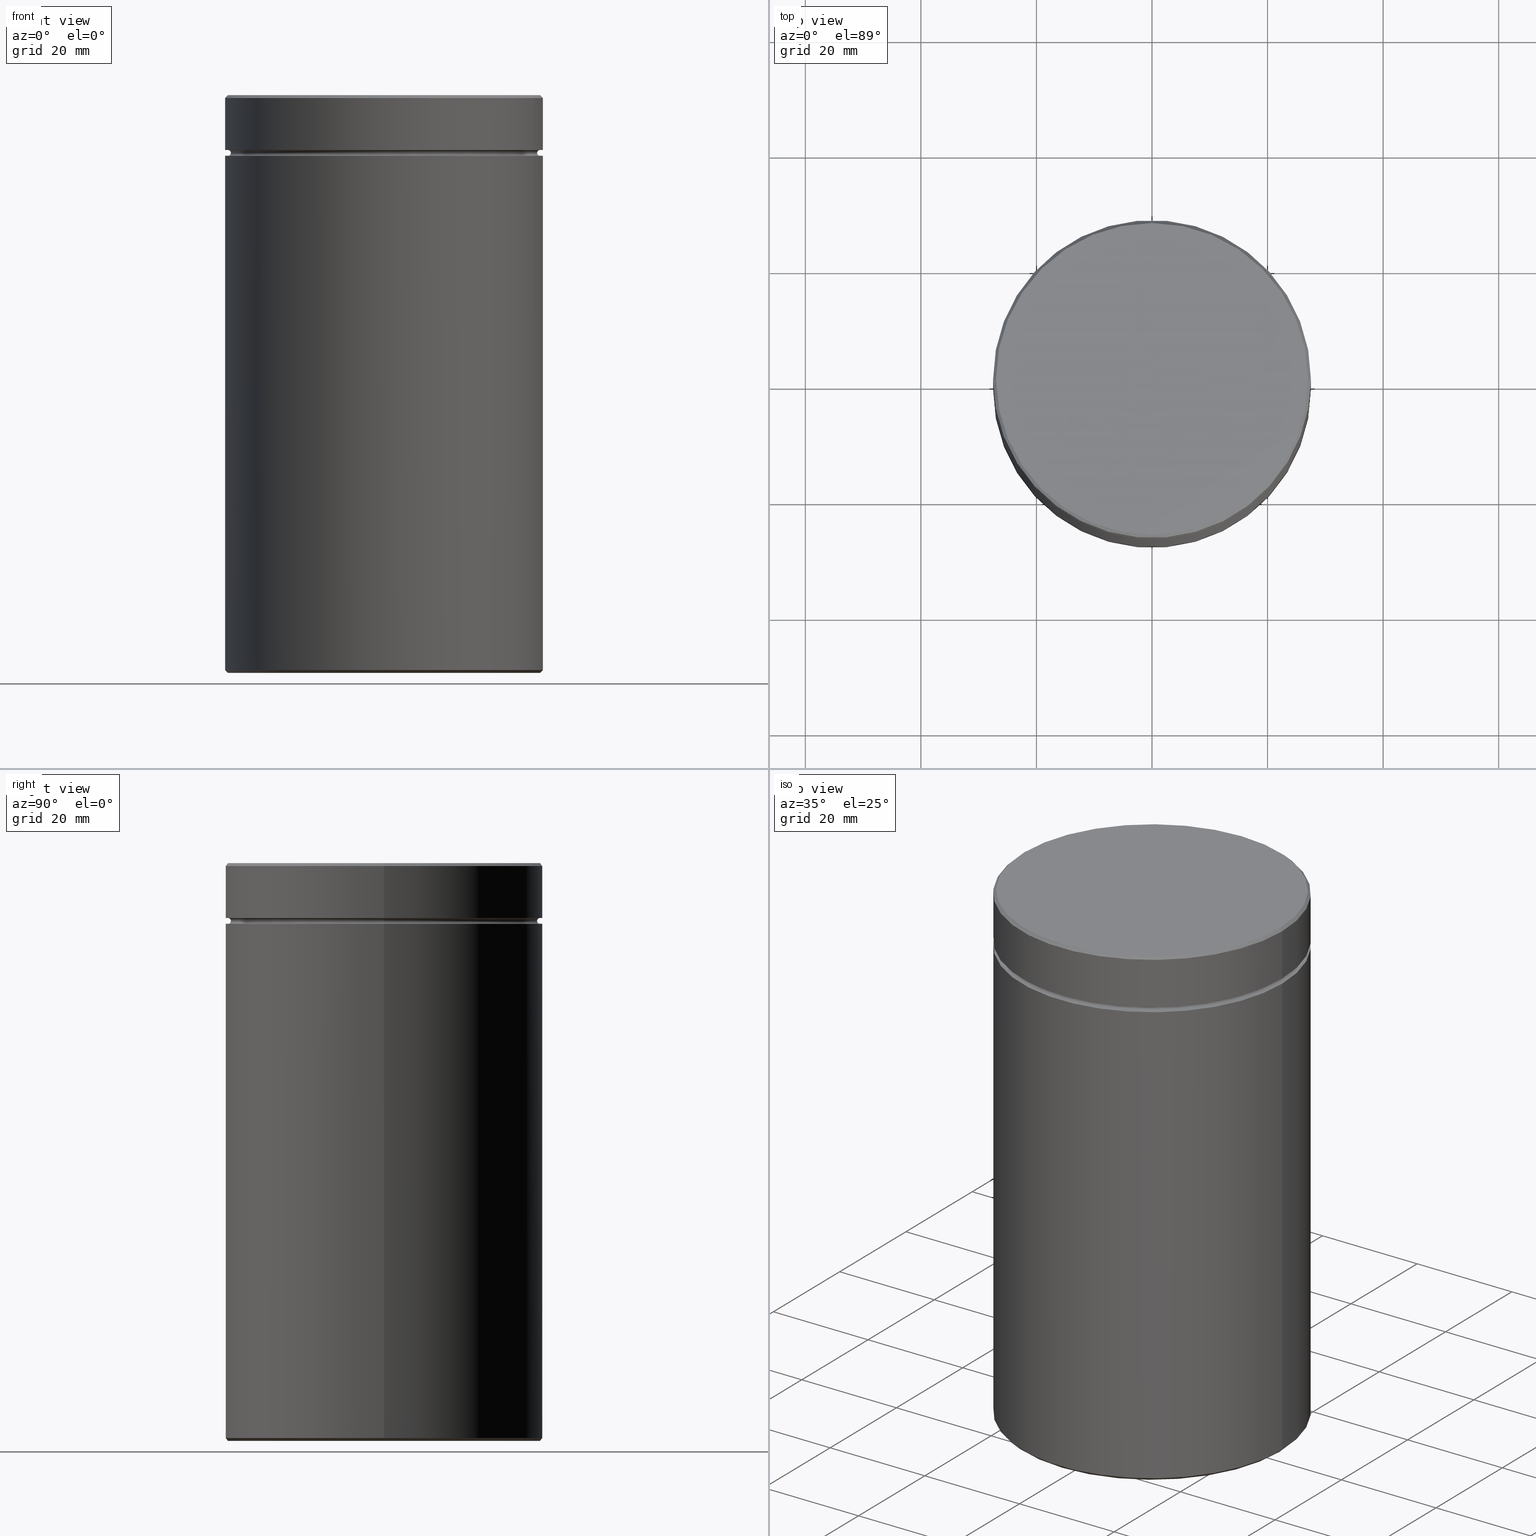
[diagram: canonical four-view strip — front | top / right | iso, engineering-drawing reading convention]
A machine part, canonical four-view strip (front | top / right | iso — engineering-drawing reading convention). The complete STEP part file that produces these views, byte-faithful:
ISO-10303-21;
HEADER;
FILE_DESCRIPTION (( 'STEP AP203' ),
    '1' );
FILE_NAME ('6534.STEP',
    '2024-01-08T12:14:00',
    ( '' ),
    ( '' ),
    'SwSTEP 2.0',
    'SolidWorks 2019',
    '' );
FILE_SCHEMA (( 'CONFIG_CONTROL_DESIGN' ));
ENDSEC;

DATA;
#1 = AXIS2_PLACEMENT_3D ( 'NONE', #430, #31, #298 ) ;
#2 = ORIENTED_EDGE ( 'NONE', *, *, #403, .T. ) ;
#3 = CARTESIAN_POINT ( 'NONE',  ( 0.000000000000000000, 27.50000000000000000, -100.0000000000000000 ) ) ;
#4 = ORIENTED_EDGE ( 'NONE', *, *, #102, .T. ) ;
#5 = FACE_OUTER_BOUND ( 'NONE', #489, .T. ) ;
#6 = EDGE_LOOP ( 'NONE', ( #527, #376 ) ) ;
#7 = ADVANCED_FACE ( 'NONE', ( #13 ), #60, .T. ) ;
#8 = AXIS2_PLACEMENT_3D ( 'NONE', #474, #68, #114 ) ;
#9 = PERSON_AND_ORGANIZATION ( #221, #469 ) ;
#10 = DIRECTION ( 'NONE',  ( -1.000000000000000000, 0.000000000000000000, 0.000000000000000000 ) ) ;
#11 = CYLINDRICAL_SURFACE ( 'NONE', #254, 27.50000000000000000 ) ;
#12 = ADVANCED_FACE ( 'NONE', ( #288, #328 ), #503, .T. ) ;
#13 = FACE_OUTER_BOUND ( 'NONE', #534, .T. ) ;
#14 = EDGE_LOOP ( 'NONE', ( #227, #408 ) ) ;
#15 = CARTESIAN_POINT ( 'NONE',  ( 0.000000000000000000, 0.000000000000000000, 0.000000000000000000 ) ) ;
#16 = CARTESIAN_POINT ( 'NONE',  ( 0.000000000000000000, 0.000000000000000000, -10.00000000000000178 ) ) ;
#17 = CIRCLE ( 'NONE', #260, 26.99999999999996803 ) ;
#18 = ORIENTED_EDGE ( 'NONE', *, *, #492, .T. ) ;
#19 = ORIENTED_EDGE ( 'NONE', *, *, #475, .F. ) ;
#20 = EDGE_CURVE ( 'NONE', #549, #146, #377, .T. ) ;
#21 = DATE_AND_TIME ( #471, #432 ) ;
#22 = DIRECTION ( 'NONE',  ( 0.7071067811865401342, 0.000000000000000000, 0.7071067811865549002 ) ) ;
#23 = CIRCLE ( 'NONE', #539, 0.5000000000000004441 ) ;
#24 = AXIS2_PLACEMENT_3D ( 'NONE', #476, #394, #361 ) ;
#25 = CARTESIAN_POINT ( 'NONE',  ( -27.00000000000000000, 0.000000000000000000, -9.499999999999998224 ) ) ;
#26 = CARTESIAN_POINT ( 'NONE',  ( 0.000000000000000000, 0.000000000000000000, -29.00000000000001066 ) ) ;
#27 = EDGE_LOOP ( 'NONE', ( #93, #189, #404, #4 ) ) ;
#28 = CARTESIAN_POINT ( 'NONE',  ( 27.00000000000000000, 3.306546357697854128E-15, -9.499999999999998224 ) ) ;
#29 = EDGE_CURVE ( 'NONE', #484, #272, #205, .T. ) ;
#30 = FACE_OUTER_BOUND ( 'NONE', #141, .T. ) ;
#31 = DIRECTION ( 'NONE',  ( -0.000000000000000000, -0.000000000000000000, 1.000000000000000000 ) ) ;
#32 = AXIS2_PLACEMENT_3D ( 'NONE', #132, #267, #434 ) ;
#33 = EDGE_CURVE ( 'NONE', #152, #488, #477, .T. ) ;
#34 = LINE ( 'NONE', #395, #245 ) ;
#35 = CARTESIAN_POINT ( 'NONE',  ( 0.000000000000000000, 0.000000000000000000, -9.499999999999998224 ) ) ;
#36 = ORIENTED_EDGE ( 'NONE', *, *, #135, .T. ) ;
#37 = ORIENTED_EDGE ( 'NONE', *, *, #386, .F. ) ;
#38 = LINE ( 'NONE', #59, #427 ) ;
#39 = AXIS2_PLACEMENT_3D ( 'NONE', #559, #120, #382 ) ;
#40 = ORIENTED_EDGE ( 'NONE', *, *, #339, .F. ) ;
#41 = EDGE_LOOP ( 'NONE', ( #49, #18, #133, #78 ) ) ;
#42 = PLANE ( 'NONE',  #213 ) ;
#43 = DIRECTION ( 'NONE',  ( 0.000000000000000000, 0.000000000000000000, -1.000000000000000000 ) ) ;
#44 = ADVANCED_FACE ( 'NONE', ( #155 ), #244, .T. ) ;
#45 = ORIENTED_EDGE ( 'NONE', *, *, #274, .T. ) ;
#46 = VERTEX_POINT ( 'NONE', #194 ) ;
#47 = PERSON_AND_ORGANIZATION_ROLE ( 'creator' ) ;
#48 = CARTESIAN_POINT ( 'NONE',  ( -27.00000000000000000, 0.000000000000000000, -9.999999999999998224 ) ) ;
#49 = ORIENTED_EDGE ( 'NONE', *, *, #33, .T. ) ;
#50 = ORIENTED_EDGE ( 'NONE', *, *, #251, .F. ) ;
#51 = AXIS2_PLACEMENT_3D ( 'NONE', #282, #277, #10 ) ;
#52 = ORIENTED_EDGE ( 'NONE', *, *, #339, .T. ) ;
#53 = APPROVAL_ROLE ( '' ) ;
#54 = DIRECTION ( 'NONE',  ( -0.000000000000000000, -0.000000000000000000, 1.000000000000000000 ) ) ;
#55 = ORIENTED_EDGE ( 'NONE', *, *, #421, .F. ) ;
#56 = UNCERTAINTY_MEASURE_WITH_UNIT (LENGTH_MEASURE( 1.000000000000000082E-05 ), #196, 'distance_accuracy_value', 'NONE');
#57 = APPLICATION_PROTOCOL_DEFINITION ( 'international standard', 'config_control_design', 1994, #545 ) ;
#58 = ADVANCED_FACE ( 'NONE', ( #371 ), #108, .F. ) ;
#59 = CARTESIAN_POINT ( 'NONE',  ( 27.50000000000000000, 0.000000000000000000, 0.000000000000000000 ) ) ;
#60 = CYLINDRICAL_SURFACE ( 'NONE', #139, 27.50000000000000000 ) ;
#61 = ORIENTED_EDGE ( 'NONE', *, *, #180, .T. ) ;
#62 = CIRCLE ( 'NONE', #460, 27.00000000000000000 ) ;
#63 = CONICAL_SURFACE ( 'NONE', #1, 27.50000000000000000, 0.7853981633974378429 ) ;
#64 = PERSON_AND_ORGANIZATION ( #221, #469 ) ;
#65 = LINE ( 'NONE', #247, #149 ) ;
#66 = EDGE_CURVE ( 'NONE', #272, #484, #220, .T. ) ;
#67 = ORIENTED_EDGE ( 'NONE', *, *, #180, .F. ) ;
#68 = DIRECTION ( 'NONE',  ( 0.000000000000000000, 0.000000000000000000, -1.000000000000000000 ) ) ;
#69 = CARTESIAN_POINT ( 'NONE',  ( 27.00000000000000000, 0.000000000000000000, -10.00000000000000178 ) ) ;
#70 = CLOSED_SHELL ( 'NONE', ( #163, #58, #124, #265, #216, #537, #312, #191, #364, #7, #12, #451, #567, #82, #44, #481, #379, #302, #370 ) ) ;
#71 = CIRCLE ( 'NONE', #506, 26.50000000000000000 ) ;
#72 = EDGE_CURVE ( 'NONE', #238, #305, #65, .T. ) ;
#73 = LOCAL_TIME ( 13, 14, 0.000000000000000000, #202 ) ;
#74 = CARTESIAN_POINT ( 'NONE',  ( 26.50000000000000000, 0.000000000000000000, -10.00000000000000178 ) ) ;
#75 = CARTESIAN_POINT ( 'NONE',  ( 0.000000000000000000, 0.000000000000000000, -29.00000000000001066 ) ) ;
#76 = DIRECTION ( 'NONE',  ( 0.000000000000000000, -0.000000000000000000, 1.000000000000000000 ) ) ;
#77 = DIRECTION ( 'NONE',  ( 0.000000000000000000, 0.000000000000000000, -1.000000000000000000 ) ) ;
#78 = ORIENTED_EDGE ( 'NONE', *, *, #533, .F. ) ;
#79 = FACE_OUTER_BOUND ( 'NONE', #95, .T. ) ;
#80 = VECTOR ( 'NONE', #436, 1000.000000000000000 ) ;
#81 = DIRECTION ( 'NONE',  ( 1.000000000000000000, 0.000000000000000000, 0.000000000000000000 ) ) ;
#82 = ADVANCED_FACE ( 'NONE', ( #548 ), #295, .F. ) ;
#83 = LINE ( 'NONE', #262, #80 ) ;
#84 = ORIENTED_EDGE ( 'NONE', *, *, #285, .T. ) ;
#85 = DIRECTION ( 'NONE',  ( -1.000000000000000000, 0.000000000000000000, 0.000000000000000000 ) ) ;
#86 = DIRECTION ( 'NONE',  ( -1.000000000000000000, 0.000000000000000000, 0.000000000000000000 ) ) ;
#87 = ORIENTED_EDGE ( 'NONE', *, *, #296, .F. ) ;
#88 = CARTESIAN_POINT ( 'NONE',  ( 0.000000000000000000, 0.000000000000000000, 0.000000000000000000 ) ) ;
#89 = EDGE_CURVE ( 'NONE', #238, #528, #419, .T. ) ;
#90 = CONICAL_SURFACE ( 'NONE', #318, 27.50000000000000000, 0.7853981633974378429 ) ;
#91 = DIRECTION ( 'NONE',  ( -1.000000000000000000, 0.000000000000000000, 0.000000000000000000 ) ) ;
#92 = CC_DESIGN_APPROVAL ( #240, ( #346 ) ) ;
#93 = ORIENTED_EDGE ( 'NONE', *, *, #274, .F. ) ;
#94 = CARTESIAN_POINT ( 'NONE',  ( 0.000000000000000000, 0.000000000000000000, -0.5000000000000143219 ) ) ;
#95 = EDGE_LOOP ( 'NONE', ( #143, #287, #52, #342 ) ) ;
#96 = VERTEX_POINT ( 'NONE', #304 ) ;
#97 = EDGE_LOOP ( 'NONE', ( #87, #61, #37, #182 ) ) ;
#98 = PERSON_AND_ORGANIZATION ( #221, #469 ) ;
#99 = CARTESIAN_POINT ( 'NONE',  ( -27.00000000000000000, 3.306546357697854128E-15, -10.50000000000000178 ) ) ;
#100 = AXIS2_PLACEMENT_3D ( 'NONE', #402, #441, #354 ) ;
#101 = CIRCLE ( 'NONE', #24, 27.50000000000000000 ) ;
#102 = EDGE_CURVE ( 'NONE', #305, #96, #290, .T. ) ;
#103 = DIRECTION ( 'NONE',  ( 1.000000000000000000, 0.000000000000000000, 0.000000000000000000 ) ) ;
#104 = VERTEX_POINT ( 'NONE', #358 ) ;
#105 = PERSON_AND_ORGANIZATION_ROLE ( 'design_owner' ) ;
#106 = EDGE_CURVE ( 'NONE', #314, #236, #71, .T. ) ;
#107 = DIRECTION ( 'NONE',  ( -1.000000000000000000, 0.000000000000000000, -0.000000000000000000 ) ) ;
#108 = TOROIDAL_SURFACE ( 'NONE', #486, 27.00000000000000000, 0.5000000000000000000 ) ;
#109 = APPROVAL_PERSON_ORGANIZATION ( #422, #435, #463 ) ;
#110 = APPROVAL_STATUS ( 'not_yet_approved' ) ;
#111 = CARTESIAN_POINT ( 'NONE',  ( 0.000000000000000000, 0.000000000000000000, 0.000000000000000000 ) ) ;
#112 = VERTEX_POINT ( 'NONE', #263 ) ;
#113 = PERSON_AND_ORGANIZATION ( #221, #469 ) ;
#114 = DIRECTION ( 'NONE',  ( -1.000000000000000000, 0.000000000000000000, 0.000000000000000000 ) ) ;
#115 = EDGE_CURVE ( 'NONE', #264, #268, #281, .T. ) ;
#116 = CALENDAR_DATE ( 2024, 8, 1 ) ;
#117 = CARTESIAN_POINT ( 'NONE',  ( 27.50000000000000000, 0.000000000000000000, -10.50000000000000000 ) ) ;
#118 = DIRECTION ( 'NONE',  ( -0.000000000000000000, -0.000000000000000000, -1.000000000000000000 ) ) ;
#119 = AXIS2_PLACEMENT_3D ( 'NONE', #111, #345, #294 ) ;
#120 = DIRECTION ( 'NONE',  ( -0.000000000000000000, -0.000000000000000000, 1.000000000000000000 ) ) ;
#121 = DIRECTION ( 'NONE',  ( -1.000000000000000000, 0.000000000000000000, 0.000000000000000000 ) ) ;
#122 = CARTESIAN_POINT ( 'NONE',  ( -26.50000000000000000, 3.275930187719169552E-15, -10.00000000000000178 ) ) ;
#123 = DIRECTION ( 'NONE',  ( 1.000000000000000000, 0.000000000000000000, 0.000000000000000000 ) ) ;
#124 = ADVANCED_FACE ( 'NONE', ( #524 ), #90, .T. ) ;
#125 = DIRECTION ( 'NONE',  ( -0.000000000000000000, -0.000000000000000000, 1.000000000000000000 ) ) ;
#126 = VECTOR ( 'NONE', #300, 1000.000000000000000 ) ;
#127 = LOCAL_TIME ( 13, 14, 0.000000000000000000, #407 ) ;
#128 = CARTESIAN_POINT ( 'NONE',  ( 0.000000000000000000, 0.000000000000000000, -0.5000000000000143219 ) ) ;
#129 = ORIENTED_EDGE ( 'NONE', *, *, #533, .T. ) ;
#130 = ORIENTED_EDGE ( 'NONE', *, *, #115, .T. ) ;
#131 = CARTESIAN_POINT ( 'NONE',  ( 0.000000000000000000, 0.000000000000000000, 0.000000000000000000 ) ) ;
#132 = CARTESIAN_POINT ( 'NONE',  ( 0.000000000000000000, 0.000000000000000000, -9.999999999999998224 ) ) ;
#133 = ORIENTED_EDGE ( 'NONE', *, *, #145, .T. ) ;
#134 = EDGE_LOOP ( 'NONE', ( #543, #322, #2, #350 ) ) ;
#135 = EDGE_CURVE ( 'NONE', #268, #264, #62, .T. ) ;
#136 = LINE ( 'NONE', #529, #261 ) ;
#137 = DIRECTION ( 'NONE',  ( -0.000000000000000000, -0.000000000000000000, 1.000000000000000000 ) ) ;
#138 = ORIENTED_EDGE ( 'NONE', *, *, #208, .F. ) ;
#139 = AXIS2_PLACEMENT_3D ( 'NONE', #368, #381, #103 ) ;
#140 = FACE_OUTER_BOUND ( 'NONE', #175, .T. ) ;
#141 = EDGE_LOOP ( 'NONE', ( #230, #493, #192, #416 ) ) ;
#142 =( NAMED_UNIT ( * ) SI_UNIT ( $, .STERADIAN. ) SOLID_ANGLE_UNIT ( ) );
#143 = ORIENTED_EDGE ( 'NONE', *, *, #510, .F. ) ;
#144 = CALENDAR_DATE ( 2024, 8, 1 ) ;
#145 = EDGE_CURVE ( 'NONE', #378, #146, #197, .T. ) ;
#146 = VERTEX_POINT ( 'NONE', #217 ) ;
#147 = CYLINDRICAL_SURFACE ( 'NONE', #552, 27.50000000000000000 ) ;
#148 = CARTESIAN_POINT ( 'NONE',  ( 0.000000000000000000, 27.50000000000000000, -9.499999999999998224 ) ) ;
#149 = VECTOR ( 'NONE', #423, 1000.000000000000000 ) ;
#150 = CARTESIAN_POINT ( 'NONE',  ( 0.000000000000000000, 0.000000000000000000, -29.00000000000001066 ) ) ;
#151 = DIRECTION ( 'NONE',  ( 1.000000000000000000, 0.000000000000000000, 0.000000000000000000 ) ) ;
#152 = VERTEX_POINT ( 'NONE', #215 ) ;
#153 = EDGE_CURVE ( 'NONE', #228, #112, #551, .T. ) ;
#154 = CARTESIAN_POINT ( 'NONE',  ( 0.000000000000000000, 0.000000000000000000, 0.000000000000000000 ) ) ;
#155 = FACE_OUTER_BOUND ( 'NONE', #14, .T. ) ;
#156 = COORDINATED_UNIVERSAL_TIME_OFFSET ( 1, 0, .AHEAD. ) ;
#157 = CARTESIAN_POINT ( 'NONE',  ( 20.50000000000000000, 2.510525938252074481E-15, -29.00000000000001066 ) ) ;
#158 = CIRCLE ( 'NONE', #167, 20.50000000000000000 ) ;
#159 = AXIS2_PLACEMENT_3D ( 'NONE', #131, #313, #482 ) ;
#160 = CARTESIAN_POINT ( 'NONE',  ( -20.50000000000000000, 0.000000000000000000, -100.0000000000000000 ) ) ;
#161 = ORIENTED_EDGE ( 'NONE', *, *, #20, .T. ) ;
#162 = CARTESIAN_POINT ( 'NONE',  ( 26.99999999999996803, 0.000000000000000000, -100.0000000000000000 ) ) ;
#163 = ADVANCED_FACE ( 'NONE', ( #140 ), #452, .F. ) ;
#164 = ORIENTED_EDGE ( 'NONE', *, *, #393, .T. ) ;
#165 = DIRECTION ( 'NONE',  ( -0.000000000000000000, -0.000000000000000000, 1.000000000000000000 ) ) ;
#166 = DIRECTION ( 'NONE',  ( 0.000000000000000000, 0.000000000000000000, -1.000000000000000000 ) ) ;
#167 = AXIS2_PLACEMENT_3D ( 'NONE', #226, #487, #448 ) ;
#168 = ADVANCED_BREP_SHAPE_REPRESENTATION ( '6534', ( #564, #384 ), #199 ) ;
#169 = CC_DESIGN_SECURITY_CLASSIFICATION ( #235, ( #532 ) ) ;
#170 = DIRECTION ( 'NONE',  ( -1.224646799147353207E-16, 1.000000000000000000, 0.000000000000000000 ) ) ;
#171 = CC_DESIGN_DATE_AND_TIME_ASSIGNMENT ( #327, #494, ( #346 ) ) ;
#172 = DIRECTION ( 'NONE',  ( -0.000000000000000000, -0.000000000000000000, 1.000000000000000000 ) ) ;
#173 = DIRECTION ( 'NONE',  ( 0.000000000000000000, 0.000000000000000000, -1.000000000000000000 ) ) ;
#174 = DIRECTION ( 'NONE',  ( 1.000000000000000000, 0.000000000000000000, 0.000000000000000000 ) ) ;
#175 = EDGE_LOOP ( 'NONE', ( #311, #278, #500, #455 ) ) ;
#176 = DIRECTION ( 'NONE',  ( 1.000000000000000000, 0.000000000000000000, 0.000000000000000000 ) ) ;
#177 = AXIS2_PLACEMENT_3D ( 'NONE', #483, #43, #530 ) ;
#178 = CC_DESIGN_APPROVAL ( #433, ( #532 ) ) ;
#179 = DIRECTION ( 'NONE',  ( -1.000000000000000000, 0.000000000000000000, 0.000000000000000000 ) ) ;
#180 = EDGE_CURVE ( 'NONE', #236, #228, #23, .T. ) ;
#181 = EDGE_LOOP ( 'NONE', ( #406, #161, #444, #397 ) ) ;
#182 = ORIENTED_EDGE ( 'NONE', *, *, #393, .F. ) ;
#183 = CARTESIAN_POINT ( 'NONE',  ( 0.000000000000000000, 0.000000000000000000, -9.500000000000000000 ) ) ;
#184 = CARTESIAN_POINT ( 'NONE',  ( 0.000000000000000000, 0.000000000000000000, -100.0000000000000000 ) ) ;
#185 = EDGE_LOOP ( 'NONE', ( #400, #438 ) ) ;
#186 = DIRECTION ( 'NONE',  ( 1.000000000000000000, 0.000000000000000000, 0.000000000000000000 ) ) ;
#187 = EDGE_LOOP ( 'NONE', ( #50, #45, #250, #517 ) ) ;
#188 = CIRCLE ( 'NONE', #453, 0.5000000000000004441 ) ;
#189 = ORIENTED_EDGE ( 'NONE', *, *, #89, .F. ) ;
#190 = CARTESIAN_POINT ( 'NONE',  ( 0.000000000000000000, 0.000000000000000000, 0.000000000000000000 ) ) ;
#191 = ADVANCED_FACE ( 'NONE', ( #5, #321 ), #271, .T. ) ;
#192 = ORIENTED_EDGE ( 'NONE', *, *, #211, .T. ) ;
#193 = APPLICATION_PROTOCOL_DEFINITION ( 'international standard', 'config_control_design', 1994, #329 ) ;
#194 = CARTESIAN_POINT ( 'NONE',  ( -27.50000000000000000, 3.367778697655221307E-15, -99.49999999999995737 ) ) ;
#195 = ORIENTED_EDGE ( 'NONE', *, *, #153, .F. ) ;
#196 =( LENGTH_UNIT ( ) NAMED_UNIT ( * ) SI_UNIT ( .MILLI., .METRE. ) );
#197 = CIRCLE ( 'NONE', #372, 27.50000000000000000 ) ;
#198 = CARTESIAN_POINT ( 'NONE',  ( 26.99999999999997868, 3.306546357697850972E-15, 0.000000000000000000 ) ) ;
#199 =( GEOMETRIC_REPRESENTATION_CONTEXT ( 3 ) GLOBAL_UNCERTAINTY_ASSIGNED_CONTEXT ( ( #56 ) ) GLOBAL_UNIT_ASSIGNED_CONTEXT ( ( #196, #413, #142 ) ) REPRESENTATION_CONTEXT ( 'NONE', 'WORKASPACE' ) );
#200 = EDGE_CURVE ( 'NONE', #241, #447, #17, .T. ) ;
#201 = EDGE_LOOP ( 'NONE', ( #360, #363, #297, #40 ) ) ;
#202 = COORDINATED_UNIVERSAL_TIME_OFFSET ( 1, 0, .AHEAD. ) ;
#203 = EDGE_LOOP ( 'NONE', ( #67, #480, #164, #195 ) ) ;
#204 = CARTESIAN_POINT ( 'NONE',  ( 0.000000000000000000, 0.000000000000000000, -10.00000000000000178 ) ) ;
#205 = CIRCLE ( 'NONE', #468, 27.50000000000000000 ) ;
#206 = APPROVAL_PERSON_ORGANIZATION ( #98, #433, #53 ) ;
#207 = LINE ( 'NONE', #266, #356 ) ;
#208 = EDGE_CURVE ( 'NONE', #96, #305, #158, .T. ) ;
#209 = CYLINDRICAL_SURFACE ( 'NONE', #562, 27.50000000000000000 ) ;
#210 = CARTESIAN_POINT ( 'NONE',  ( -20.50000000000000000, 0.000000000000000000, -29.00000000000001066 ) ) ;
#211 = EDGE_CURVE ( 'NONE', #236, #264, #340, .T. ) ;
#212 = CIRCLE ( 'NONE', #253, 20.50000000000000000 ) ;
#213 = AXIS2_PLACEMENT_3D ( 'NONE', #405, #565, #186 ) ;
#214 = DESIGN_CONTEXT ( 'detailed design', #329, 'design' ) ;
#215 = CARTESIAN_POINT ( 'NONE',  ( 27.50000000000000000, 0.000000000000000000, -9.500000000000000000 ) ) ;
#216 = ADVANCED_FACE ( 'NONE', ( #336 ), #541, .F. ) ;
#217 = CARTESIAN_POINT ( 'NONE',  ( 27.50000000000000000, 0.000000000000000000, -0.5000000000000143219 ) ) ;
#218 = EDGE_LOOP ( 'NONE', ( #412, #55 ) ) ;
#219 = ORIENTED_EDGE ( 'NONE', *, *, #403, .F. ) ;
#220 = CIRCLE ( 'NONE', #233, 27.50000000000000000 ) ;
#221 = PERSON ( 'NEUR�EN�', 'NEUR�EN�', 'NEUR�EN�', ('NEUR�EN�'), ('NEUR�EN�'), ('NEUR�EN�') ) ;
#222 = VECTOR ( 'NONE', #125, 1000.000000000000000 ) ;
#223 = DIRECTION ( 'NONE',  ( 1.224646799147353207E-16, 1.000000000000000000, 0.000000000000000000 ) ) ;
#224 = ORIENTED_EDGE ( 'NONE', *, *, #421, .T. ) ;
#225 = ORIENTED_EDGE ( 'NONE', *, *, #518, .F. ) ;
#226 = CARTESIAN_POINT ( 'NONE',  ( 0.000000000000000000, 0.000000000000000000, -100.0000000000000000 ) ) ;
#227 = ORIENTED_EDGE ( 'NONE', *, *, #89, .T. ) ;
#228 = VERTEX_POINT ( 'NONE', #99 ) ;
#229 = DIRECTION ( 'NONE',  ( -0.000000000000000000, -1.000000000000000000, -0.000000000000000000 ) ) ;
#230 = ORIENTED_EDGE ( 'NONE', *, *, #353, .F. ) ;
#231 = EDGE_CURVE ( 'NONE', #104, #46, #349, .T. ) ;
#232 = MECHANICAL_CONTEXT ( 'NONE', #545, 'mechanical' ) ;
#233 = AXIS2_PLACEMENT_3D ( 'NONE', #462, #335, #332 ) ;
#234 = DIRECTION ( 'NONE',  ( 0.000000000000000000, 0.000000000000000000, -1.000000000000000000 ) ) ;
#235 = SECURITY_CLASSIFICATION ( '', '', #511 ) ;
#236 = VERTEX_POINT ( 'NONE', #122 ) ;
#237 = CARTESIAN_POINT ( 'NONE',  ( 0.000000000000000000, 0.000000000000000000, -29.00000000000001066 ) ) ;
#238 = VERTEX_POINT ( 'NONE', #210 ) ;
#239 = DIRECTION ( 'NONE',  ( 1.000000000000000000, 0.000000000000000000, 0.000000000000000000 ) ) ;
#240 = APPROVAL ( #286, 'NEUR�EN�' ) ;
#241 = VERTEX_POINT ( 'NONE', #162 ) ;
#242 = DIRECTION ( 'NONE',  ( -0.000000000000000000, -0.000000000000000000, 1.000000000000000000 ) ) ;
#243 = VECTOR ( 'NONE', #22, 1000.000000000000000 ) ;
#244 = PLANE ( 'NONE',  #383 ) ;
#245 = VECTOR ( 'NONE', #357, 1000.000000000000000 ) ;
#246 = DATE_AND_TIME ( #337, #420 ) ;
#247 = CARTESIAN_POINT ( 'NONE',  ( -20.50000000000000000, 0.000000000000000000, -29.00000000000001066 ) ) ;
#248 = ORIENTED_EDGE ( 'NONE', *, *, #501, .T. ) ;
#249 = DIRECTION ( 'NONE',  ( 1.000000000000000000, 0.000000000000000000, 0.000000000000000000 ) ) ;
#250 = ORIENTED_EDGE ( 'NONE', *, *, #208, .T. ) ;
#251 = EDGE_CURVE ( 'NONE', #528, #238, #212, .T. ) ;
#252 = DIRECTION ( 'NONE',  ( 0.000000000000000000, -1.000000000000000000, 0.000000000000000000 ) ) ;
#253 = AXIS2_PLACEMENT_3D ( 'NONE', #385, #424, #389 ) ;
#254 = AXIS2_PLACEMENT_3D ( 'NONE', #15, #498, #239 ) ;
#255 = LINE ( 'NONE', #303, #243 ) ;
#256 = DIRECTION ( 'NONE',  ( 1.000000000000000000, 0.000000000000000000, 0.000000000000000000 ) ) ;
#257 = CC_DESIGN_PERSON_AND_ORGANIZATION_ASSIGNMENT ( #347, #546, ( #235 ) ) ;
#258 = FACE_OUTER_BOUND ( 'NONE', #181, .T. ) ;
#259 = ORIENTED_EDGE ( 'NONE', *, *, #20, .F. ) ;
#260 = AXIS2_PLACEMENT_3D ( 'NONE', #184, #568, #179 ) ;
#261 = VECTOR ( 'NONE', #315, 1000.000000000000000 ) ;
#262 = CARTESIAN_POINT ( 'NONE',  ( -26.99999999999997868, 0.000000000000000000, 0.000000000000000000 ) ) ;
#263 = CARTESIAN_POINT ( 'NONE',  ( 27.00000000000000000, 0.000000000000000000, -10.50000000000000178 ) ) ;
#264 = VERTEX_POINT ( 'NONE', #25 ) ;
#265 = ADVANCED_FACE ( 'NONE', ( #258 ), #355, .T. ) ;
#266 = CARTESIAN_POINT ( 'NONE',  ( 27.50000000000000000, 0.000000000000000000, 0.000000000000000000 ) ) ;
#267 = DIRECTION ( 'NONE',  ( 0.000000000000000000, 0.000000000000000000, -1.000000000000000000 ) ) ;
#268 = VERTEX_POINT ( 'NONE', #28 ) ;
#269 = DIRECTION ( 'NONE',  ( 1.000000000000000000, 0.000000000000000000, 0.000000000000000000 ) ) ;
#270 = CIRCLE ( 'NONE', #540, 27.50000000000000000 ) ;
#271 = PLANE ( 'NONE',  #431 ) ;
#272 = VERTEX_POINT ( 'NONE', #117 ) ;
#273 = CARTESIAN_POINT ( 'NONE',  ( 0.000000000000000000, 0.000000000000000000, 0.000000000000000000 ) ) ;
#274 = EDGE_CURVE ( 'NONE', #528, #96, #512, .T. ) ;
#275 = ORIENTED_EDGE ( 'NONE', *, *, #492, .F. ) ;
#276 = DIRECTION ( 'NONE',  ( -0.000000000000000000, -0.000000000000000000, 1.000000000000000000 ) ) ;
#277 = DIRECTION ( 'NONE',  ( -0.000000000000000000, -0.000000000000000000, 1.000000000000000000 ) ) ;
#278 = ORIENTED_EDGE ( 'NONE', *, *, #353, .T. ) ;
#279 = VERTEX_POINT ( 'NONE', #338 ) ;
#280 = APPROVAL_STATUS ( 'not_yet_approved' ) ;
#281 = CIRCLE ( 'NONE', #100, 27.00000000000000000 ) ;
#282 = CARTESIAN_POINT ( 'NONE',  ( 0.000000000000000000, 0.000000000000000000, -99.49999999999995737 ) ) ;
#283 = AXIS2_PLACEMENT_3D ( 'NONE', #380, #547, #465 ) ;
#284 = DIRECTION ( 'NONE',  ( 0.000000000000000000, 0.000000000000000000, -1.000000000000000000 ) ) ;
#285 = EDGE_CURVE ( 'NONE', #447, #241, #516, .T. ) ;
#286 = APPROVAL_STATUS ( 'not_yet_approved' ) ;
#287 = ORIENTED_EDGE ( 'NONE', *, *, #200, .F. ) ;
#288 = FACE_BOUND ( 'NONE', #449, .T. ) ;
#289 = PERSON_AND_ORGANIZATION ( #221, #469 ) ;
#290 = CIRCLE ( 'NONE', #410, 20.50000000000000000 ) ;
#291 = CARTESIAN_POINT ( 'NONE',  ( 0.000000000000000000, 0.000000000000000000, -10.50000000000000000 ) ) ;
#292 = CIRCLE ( 'NONE', #283, 27.00000000000000000 ) ;
#293 = EDGE_LOOP ( 'NONE', ( #409, #359, #555, #219 ) ) ;
#294 = DIRECTION ( 'NONE',  ( -1.000000000000000000, 0.000000000000000000, 0.000000000000000000 ) ) ;
#295 = CYLINDRICAL_SURFACE ( 'NONE', #522, 20.50000000000000000 ) ;
#296 = EDGE_CURVE ( 'NONE', #236, #314, #426, .T. ) ;
#297 = ORIENTED_EDGE ( 'NONE', *, *, #231, .F. ) ;
#298 = DIRECTION ( 'NONE',  ( 1.000000000000000000, 0.000000000000000000, 0.000000000000000000 ) ) ;
#299 = COORDINATED_UNIVERSAL_TIME_OFFSET ( 1, 0, .AHEAD. ) ;
#300 = DIRECTION ( 'NONE',  ( -0.000000000000000000, -0.000000000000000000, -1.000000000000000000 ) ) ;
#301 = DIRECTION ( 'NONE',  ( -1.000000000000000000, 0.000000000000000000, 0.000000000000000000 ) ) ;
#302 = ADVANCED_FACE ( 'NONE', ( #553 ), #497, .F. ) ;
#303 = CARTESIAN_POINT ( 'NONE',  ( 27.50000000000000000, 0.000000000000000000, -99.49999999999995737 ) ) ;
#304 = CARTESIAN_POINT ( 'NONE',  ( 20.50000000000000000, 2.510525938252074481E-15, -100.0000000000000000 ) ) ;
#305 = VERTEX_POINT ( 'NONE', #160 ) ;
#306 = DIRECTION ( 'NONE',  ( 1.000000000000000000, 0.000000000000000000, 0.000000000000000000 ) ) ;
#307 = AXIS2_PLACEMENT_3D ( 'NONE', #48, #229, #234 ) ;
#308 = CIRCLE ( 'NONE', #507, 27.50000000000000000 ) ;
#309 = FACE_BOUND ( 'NONE', #317, .T. ) ;
#310 = CARTESIAN_POINT ( 'NONE',  ( 0.000000000000000000, 0.000000000000000000, -99.49999999999995737 ) ) ;
#311 = ORIENTED_EDGE ( 'NONE', *, *, #296, .T. ) ;
#312 = ADVANCED_FACE ( 'NONE', ( #348 ), #209, .T. ) ;
#313 = DIRECTION ( 'NONE',  ( -0.000000000000000000, -0.000000000000000000, 1.000000000000000000 ) ) ;
#314 = VERTEX_POINT ( 'NONE', #74 ) ;
#315 = DIRECTION ( 'NONE',  ( -0.000000000000000000, -0.000000000000000000, 1.000000000000000000 ) ) ;
#316 = DIRECTION ( 'NONE',  ( 0.000000000000000000, 0.000000000000000000, -1.000000000000000000 ) ) ;
#317 = EDGE_LOOP ( 'NONE', ( #326, #504 ) ) ;
#318 = AXIS2_PLACEMENT_3D ( 'NONE', #310, #137, #521 ) ;
#319 = FACE_OUTER_BOUND ( 'NONE', #333, .T. ) ;
#320 = CC_DESIGN_PERSON_AND_ORGANIZATION_ASSIGNMENT ( #64, #556, ( #532 ) ) ;
#321 = FACE_BOUND ( 'NONE', #525, .T. ) ;
#322 = ORIENTED_EDGE ( 'NONE', *, *, #440, .T. ) ;
#323 = ORIENTED_EDGE ( 'NONE', *, *, #102, .F. ) ;
#324 = DIRECTION ( 'NONE',  ( 1.000000000000000000, 0.000000000000000000, 0.000000000000000000 ) ) ;
#325 = DIRECTION ( 'NONE',  ( -0.000000000000000000, -0.000000000000000000, -1.000000000000000000 ) ) ;
#326 = ORIENTED_EDGE ( 'NONE', *, *, #386, .T. ) ;
#327 = DATE_AND_TIME ( #144, #127 ) ;
#328 = FACE_OUTER_BOUND ( 'NONE', #218, .T. ) ;
#329 = APPLICATION_CONTEXT ( 'configuration controlled 3d designs of mechanical parts and assemblies' ) ;
#330 = ORIENTED_EDGE ( 'NONE', *, *, #200, .T. ) ;
#331 = AXIS2_PLACEMENT_3D ( 'NONE', #150, #325, #491 ) ;
#332 = DIRECTION ( 'NONE',  ( 1.000000000000000000, 0.000000000000000000, 0.000000000000000000 ) ) ;
#333 = EDGE_LOOP ( 'NONE', ( #259, #225, #248, #19 ) ) ;
#334 = APPROVAL_ROLE ( '' ) ;
#335 = DIRECTION ( 'NONE',  ( -0.000000000000000000, -0.000000000000000000, 1.000000000000000000 ) ) ;
#336 = FACE_OUTER_BOUND ( 'NONE', #187, .T. ) ;
#337 = CALENDAR_DATE ( 2024, 8, 1 ) ;
#338 = CARTESIAN_POINT ( 'NONE',  ( -26.99999999999997868, 0.000000000000000000, 0.000000000000000000 ) ) ;
#339 = EDGE_CURVE ( 'NONE', #241, #104, #255, .T. ) ;
#340 = CIRCLE ( 'NONE', #307, 0.5000000000000004441 ) ;
#341 = TOROIDAL_SURFACE ( 'NONE', #8, 27.00000000000000000, 0.5000000000000000000 ) ;
#342 = ORIENTED_EDGE ( 'NONE', *, *, #440, .F. ) ;
#343 = DIRECTION ( 'NONE',  ( -1.000000000000000000, -1.224646799147349509E-16, 0.000000000000000000 ) ) ;
#344 = APPROVAL_DATE_TIME ( #246, #433 ) ;
#345 = DIRECTION ( 'NONE',  ( 0.000000000000000000, 0.000000000000000000, -1.000000000000000000 ) ) ;
#346 = PRODUCT_DEFINITION ( 'NEZN�M�', '', #532, #214 ) ;
#347 = PERSON_AND_ORGANIZATION ( #221, #469 ) ;
#348 = FACE_OUTER_BOUND ( 'NONE', #41, .T. ) ;
#349 = CIRCLE ( 'NONE', #51, 27.50000000000000000 ) ;
#350 = ORIENTED_EDGE ( 'NONE', *, *, #29, .F. ) ;
#351 = AXIS2_PLACEMENT_3D ( 'NONE', #273, #445, #85 ) ;
#352 = LINE ( 'NONE', #520, #222 ) ;
#353 = EDGE_CURVE ( 'NONE', #314, #268, #390, .T. ) ;
#354 = DIRECTION ( 'NONE',  ( -1.000000000000000000, 0.000000000000000000, 0.000000000000000000 ) ) ;
#355 = CONICAL_SURFACE ( 'NONE', #119, 26.99999999999997868, 0.7853981633974552734 ) ;
#356 = VECTOR ( 'NONE', #519, 1000.000000000000000 ) ;
#357 = DIRECTION ( 'NONE',  ( -0.7071067811865401342, 8.659560562354842879E-17, 0.7071067811865549002 ) ) ;
#358 = CARTESIAN_POINT ( 'NONE',  ( 27.50000000000000000, 0.000000000000000000, -99.49999999999995737 ) ) ;
#359 = ORIENTED_EDGE ( 'NONE', *, *, #466, .T. ) ;
#360 = ORIENTED_EDGE ( 'NONE', *, *, #285, .F. ) ;
#361 = DIRECTION ( 'NONE',  ( -1.000000000000000000, 0.000000000000000000, 0.000000000000000000 ) ) ;
#362 = DIRECTION ( 'NONE',  ( -0.000000000000000000, -0.000000000000000000, 1.000000000000000000 ) ) ;
#363 = ORIENTED_EDGE ( 'NONE', *, *, #510, .T. ) ;
#364 = ADVANCED_FACE ( 'NONE', ( #557 ), #472, .T. ) ;
#365 = DIRECTION ( 'NONE',  ( -0.000000000000000000, -0.000000000000000000, 1.000000000000000000 ) ) ;
#366 = AXIS2_PLACEMENT_3D ( 'NONE', #75, #166, #121 ) ;
#367 = CALENDAR_DATE ( 2024, 8, 1 ) ;
#368 = CARTESIAN_POINT ( 'NONE',  ( 0.000000000000000000, 0.000000000000000000, 0.000000000000000000 ) ) ;
#369 = DIRECTION ( 'NONE',  ( 0.000000000000000000, 0.000000000000000000, 1.000000000000000000 ) ) ;
#370 = ADVANCED_FACE ( 'NONE', ( #30 ), #341, .F. ) ;
#371 = FACE_OUTER_BOUND ( 'NONE', #97, .T. ) ;
#372 = AXIS2_PLACEMENT_3D ( 'NONE', #128, #485, #81 ) ;
#373 = AXIS2_PLACEMENT_3D ( 'NONE', #428, #170, #343 ) ;
#374 = PRODUCT_DEFINITION_SHAPE ( 'NONE', 'NONE',  #346 ) ;
#375 = DIRECTION ( 'NONE',  ( -0.000000000000000000, -0.000000000000000000, 1.000000000000000000 ) ) ;
#376 = ORIENTED_EDGE ( 'NONE', *, *, #414, .T. ) ;
#377 = LINE ( 'NONE', #198, #442 ) ;
#378 = VERTEX_POINT ( 'NONE', #509 ) ;
#379 = ADVANCED_FACE ( 'NONE', ( #79 ), #63, .T. ) ;
#380 = CARTESIAN_POINT ( 'NONE',  ( 0.000000000000000000, 0.000000000000000000, -10.50000000000000178 ) ) ;
#381 = DIRECTION ( 'NONE',  ( -0.000000000000000000, -0.000000000000000000, 1.000000000000000000 ) ) ;
#382 = DIRECTION ( 'NONE',  ( 1.000000000000000000, 0.000000000000000000, 0.000000000000000000 ) ) ;
#383 = AXIS2_PLACEMENT_3D ( 'NONE', #237, #415, #107 ) ;
#384 = AXIS2_PLACEMENT_3D ( 'NONE', #154, #369, #324 ) ;
#385 = CARTESIAN_POINT ( 'NONE',  ( 0.000000000000000000, 0.000000000000000000, -29.00000000000001066 ) ) ;
#386 = EDGE_CURVE ( 'NONE', #112, #228, #292, .T. ) ;
#387 = PERSON_AND_ORGANIZATION_ROLE ( 'design_supplier' ) ;
#388 = DIRECTION ( 'NONE',  ( -1.000000000000000000, 0.000000000000000000, 0.000000000000000000 ) ) ;
#389 = DIRECTION ( 'NONE',  ( -1.000000000000000000, 0.000000000000000000, 0.000000000000000000 ) ) ;
#390 = CIRCLE ( 'NONE', #373, 0.5000000000000004441 ) ;
#391 = LOCAL_TIME ( 13, 14, 0.000000000000000000, #550 ) ;
#392 = CARTESIAN_POINT ( 'NONE',  ( -27.50000000000000000, 3.367778697655221307E-15, -10.50000000000000000 ) ) ;
#393 = EDGE_CURVE ( 'NONE', #314, #112, #188, .T. ) ;
#394 = DIRECTION ( 'NONE',  ( -0.000000000000000000, -0.000000000000000000, 1.000000000000000000 ) ) ;
#395 = CARTESIAN_POINT ( 'NONE',  ( -27.50000000000000000, 3.367778697655221307E-15, -99.49999999999995737 ) ) ;
#396 = DIRECTION ( 'NONE',  ( -1.000000000000000000, 1.224646799147349509E-16, 0.000000000000000000 ) ) ;
#397 = ORIENTED_EDGE ( 'NONE', *, *, #501, .F. ) ;
#398 = AXIS2_PLACEMENT_3D ( 'NONE', #204, #165, #249 ) ;
#399 = AXIS2_PLACEMENT_3D ( 'NONE', #454, #54, #459 ) ;
#400 = ORIENTED_EDGE ( 'NONE', *, *, #66, .T. ) ;
#401 = CARTESIAN_POINT ( 'NONE',  ( -27.50000000000000000, 3.367778697655221307E-15, -9.500000000000000000 ) ) ;
#402 = CARTESIAN_POINT ( 'NONE',  ( 0.000000000000000000, 0.000000000000000000, -9.499999999999998224 ) ) ;
#403 = EDGE_CURVE ( 'NONE', #104, #272, #207, .T. ) ;
#404 = ORIENTED_EDGE ( 'NONE', *, *, #72, .T. ) ;
#405 = CARTESIAN_POINT ( 'NONE',  ( 0.000000000000000000, 26.50000000000000000, -10.50000000000000178 ) ) ;
#406 = ORIENTED_EDGE ( 'NONE', *, *, #414, .F. ) ;
#407 = COORDINATED_UNIVERSAL_TIME_OFFSET ( 1, 0, .AHEAD. ) ;
#408 = ORIENTED_EDGE ( 'NONE', *, *, #251, .T. ) ;
#409 = ORIENTED_EDGE ( 'NONE', *, *, #231, .T. ) ;
#410 = AXIS2_PLACEMENT_3D ( 'NONE', #473, #77, #91 ) ;
#411 = AXIS2_PLACEMENT_3D ( 'NONE', #88, #365, #176 ) ;
#412 = ORIENTED_EDGE ( 'NONE', *, *, #33, .F. ) ;
#413 =( NAMED_UNIT ( * ) PLANE_ANGLE_UNIT ( ) SI_UNIT ( $, .RADIAN. ) );
#414 = EDGE_CURVE ( 'NONE', #549, #279, #443, .T. ) ;
#415 = DIRECTION ( 'NONE',  ( 0.000000000000000000, 0.000000000000000000, -1.000000000000000000 ) ) ;
#416 = ORIENTED_EDGE ( 'NONE', *, *, #135, .F. ) ;
#417 = DIRECTION ( 'NONE',  ( 1.000000000000000000, 0.000000000000000000, 0.000000000000000000 ) ) ;
#418 = DIRECTION ( 'NONE',  ( 1.000000000000000000, 0.000000000000000000, 0.000000000000000000 ) ) ;
#419 = CIRCLE ( 'NONE', #366, 20.50000000000000000 ) ;
#420 = LOCAL_TIME ( 13, 14, 0.000000000000000000, #156 ) ;
#421 = EDGE_CURVE ( 'NONE', #488, #152, #270, .T. ) ;
#422 = PERSON_AND_ORGANIZATION ( #221, #469 ) ;
#423 = DIRECTION ( 'NONE',  ( -0.000000000000000000, -0.000000000000000000, -1.000000000000000000 ) ) ;
#424 = DIRECTION ( 'NONE',  ( 0.000000000000000000, 0.000000000000000000, -1.000000000000000000 ) ) ;
#425 = DIRECTION ( 'NONE',  ( 0.000000000000000000, 0.000000000000000000, -1.000000000000000000 ) ) ;
#426 = CIRCLE ( 'NONE', #39, 26.50000000000000000 ) ;
#427 = VECTOR ( 'NONE', #242, 1000.000000000000000 ) ;
#428 = CARTESIAN_POINT ( 'NONE',  ( 27.00000000000000000, 3.306546357697853733E-15, -9.999999999999998224 ) ) ;
#429 = CARTESIAN_POINT ( 'NONE',  ( 0.000000000000000000, 0.000000000000000000, -100.0000000000000000 ) ) ;
#430 = CARTESIAN_POINT ( 'NONE',  ( 0.000000000000000000, 0.000000000000000000, -99.49999999999995737 ) ) ;
#431 = AXIS2_PLACEMENT_3D ( 'NONE', #3, #316, #446 ) ;
#432 = LOCAL_TIME ( 13, 14, 0.000000000000000000, #299 ) ;
#433 = APPROVAL ( #280, 'NEUR�EN�' ) ;
#434 = DIRECTION ( 'NONE',  ( -1.000000000000000000, 0.000000000000000000, 0.000000000000000000 ) ) ;
#435 = APPROVAL ( #110, 'NEUR�EN�' ) ;
#436 = DIRECTION ( 'NONE',  ( -0.7071067811865524577, 0.000000000000000000, -0.7071067811865426878 ) ) ;
#437 = CARTESIAN_POINT ( 'NONE',  ( -27.00000000000000000, 3.306546357697853733E-15, -10.00000000000000178 ) ) ;
#438 = ORIENTED_EDGE ( 'NONE', *, *, #29, .T. ) ;
#439 = CARTESIAN_POINT ( 'NONE',  ( 20.50000000000000000, 2.510525938252074481E-15, -29.00000000000001066 ) ) ;
#440 = EDGE_CURVE ( 'NONE', #46, #104, #101, .T. ) ;
#441 = DIRECTION ( 'NONE',  ( -0.000000000000000000, -0.000000000000000000, 1.000000000000000000 ) ) ;
#442 = VECTOR ( 'NONE', #544, 1000.000000000000000 ) ;
#443 = CIRCLE ( 'NONE', #411, 26.99999999999997868 ) ;
#444 = ORIENTED_EDGE ( 'NONE', *, *, #145, .F. ) ;
#445 = DIRECTION ( 'NONE',  ( 0.000000000000000000, 0.000000000000000000, -1.000000000000000000 ) ) ;
#446 = DIRECTION ( 'NONE',  ( -1.000000000000000000, 0.000000000000000000, -0.000000000000000000 ) ) ;
#447 = VERTEX_POINT ( 'NONE', #526 ) ;
#448 = DIRECTION ( 'NONE',  ( -1.000000000000000000, 0.000000000000000000, 0.000000000000000000 ) ) ;
#449 = EDGE_LOOP ( 'NONE', ( #130, #36 ) ) ;
#450 = FACE_OUTER_BOUND ( 'NONE', #134, .T. ) ;
#451 = ADVANCED_FACE ( 'NONE', ( #309, #478 ), #42, .T. ) ;
#452 = TOROIDAL_SURFACE ( 'NONE', #32, 27.00000000000000000, 0.5000000000000000000 ) ;
#453 = AXIS2_PLACEMENT_3D ( 'NONE', #69, #252, #425 ) ;
#454 = CARTESIAN_POINT ( 'NONE',  ( 0.000000000000000000, 0.000000000000000000, -9.500000000000000000 ) ) ;
#455 = ORIENTED_EDGE ( 'NONE', *, *, #211, .F. ) ;
#456 = DATE_AND_TIME ( #367, #73 ) ;
#457 = PRODUCT ( '6534', '6534', '', ( #232 ) ) ;
#458 = CC_DESIGN_PERSON_AND_ORGANIZATION_ASSIGNMENT ( #113, #387, ( #532 ) ) ;
#459 = DIRECTION ( 'NONE',  ( 1.000000000000000000, 0.000000000000000000, 0.000000000000000000 ) ) ;
#460 = AXIS2_PLACEMENT_3D ( 'NONE', #35, #362, #86 ) ;
#461 = APPROVAL_PERSON_ORGANIZATION ( #536, #240, #334 ) ;
#462 = CARTESIAN_POINT ( 'NONE',  ( 0.000000000000000000, 0.000000000000000000, -10.50000000000000000 ) ) ;
#463 = APPROVAL_ROLE ( '' ) ;
#464 = SHAPE_DEFINITION_REPRESENTATION ( #374, #168 ) ;
#465 = DIRECTION ( 'NONE',  ( 1.000000000000000000, 0.000000000000000000, 0.000000000000000000 ) ) ;
#466 = EDGE_CURVE ( 'NONE', #46, #484, #136, .T. ) ;
#467 = CARTESIAN_POINT ( 'NONE',  ( 0.000000000000000000, 0.000000000000000000, 0.000000000000000000 ) ) ;
#468 = AXIS2_PLACEMENT_3D ( 'NONE', #291, #495, #417 ) ;
#469 = ORGANIZATION ( 'NEUR�EN�', 'NEUR�EN�', '' ) ;
#470 = CONICAL_SURFACE ( 'NONE', #351, 26.99999999999997868, 0.7853981633974552734 ) ;
#471 = CALENDAR_DATE ( 2024, 8, 1 ) ;
#472 = PLANE ( 'NONE',  #523 ) ;
#473 = CARTESIAN_POINT ( 'NONE',  ( 0.000000000000000000, 0.000000000000000000, -100.0000000000000000 ) ) ;
#474 = CARTESIAN_POINT ( 'NONE',  ( 0.000000000000000000, 0.000000000000000000, -9.999999999999998224 ) ) ;
#475 = EDGE_CURVE ( 'NONE', #146, #378, #308, .T. ) ;
#476 = CARTESIAN_POINT ( 'NONE',  ( 0.000000000000000000, 0.000000000000000000, -99.49999999999995737 ) ) ;
#477 = CIRCLE ( 'NONE', #399, 27.50000000000000000 ) ;
#478 = FACE_OUTER_BOUND ( 'NONE', #185, .T. ) ;
#479 = DIRECTION ( 'NONE',  ( -0.000000000000000000, -0.000000000000000000, 1.000000000000000000 ) ) ;
#480 = ORIENTED_EDGE ( 'NONE', *, *, #106, .F. ) ;
#481 = ADVANCED_FACE ( 'NONE', ( #319 ), #470, .T. ) ;
#482 = DIRECTION ( 'NONE',  ( 1.000000000000000000, 0.000000000000000000, 0.000000000000000000 ) ) ;
#483 = CARTESIAN_POINT ( 'NONE',  ( 0.000000000000000000, 0.000000000000000000, -10.50000000000000178 ) ) ;
#484 = VERTEX_POINT ( 'NONE', #392 ) ;
#485 = DIRECTION ( 'NONE',  ( 0.000000000000000000, 0.000000000000000000, -1.000000000000000000 ) ) ;
#486 = AXIS2_PLACEMENT_3D ( 'NONE', #16, #375, #151 ) ;
#487 = DIRECTION ( 'NONE',  ( 0.000000000000000000, 0.000000000000000000, -1.000000000000000000 ) ) ;
#488 = VERTEX_POINT ( 'NONE', #401 ) ;
#489 = EDGE_LOOP ( 'NONE', ( #330, #84 ) ) ;
#490 = CARTESIAN_POINT ( 'NONE',  ( 26.99999999999997868, 3.337162527676536337E-15, 0.000000000000000000 ) ) ;
#491 = DIRECTION ( 'NONE',  ( -1.000000000000000000, 0.000000000000000000, 0.000000000000000000 ) ) ;
#492 = EDGE_CURVE ( 'NONE', #488, #378, #352, .T. ) ;
#493 = ORIENTED_EDGE ( 'NONE', *, *, #106, .T. ) ;
#494 = DATE_TIME_ROLE ( 'creation_date' ) ;
#495 = DIRECTION ( 'NONE',  ( -0.000000000000000000, -0.000000000000000000, 1.000000000000000000 ) ) ;
#496 = PRODUCT_RELATED_PRODUCT_CATEGORY ( 'detail', '', ( #457 ) ) ;
#497 = TOROIDAL_SURFACE ( 'NONE', #398, 27.00000000000000000, 0.5000000000000000000 ) ;
#498 = DIRECTION ( 'NONE',  ( -0.000000000000000000, -0.000000000000000000, 1.000000000000000000 ) ) ;
#499 = CC_DESIGN_APPROVAL ( #435, ( #235 ) ) ;
#500 = ORIENTED_EDGE ( 'NONE', *, *, #115, .F. ) ;
#501 = EDGE_CURVE ( 'NONE', #279, #378, #83, .T. ) ;
#502 = FACE_OUTER_BOUND ( 'NONE', #293, .T. ) ;
#503 = PLANE ( 'NONE',  #531 ) ;
#504 = ORIENTED_EDGE ( 'NONE', *, *, #153, .T. ) ;
#505 = DATE_TIME_ROLE ( 'classification_date' ) ;
#506 = AXIS2_PLACEMENT_3D ( 'NONE', #566, #479, #174 ) ;
#507 = AXIS2_PLACEMENT_3D ( 'NONE', #94, #173, #269 ) ;
#508 = DIRECTION ( 'NONE',  ( -0.000000000000000000, -0.000000000000000000, 1.000000000000000000 ) ) ;
#509 = CARTESIAN_POINT ( 'NONE',  ( -27.50000000000000000, 3.367778697655221307E-15, -0.5000000000000143219 ) ) ;
#510 = EDGE_CURVE ( 'NONE', #447, #46, #34, .T. ) ;
#511 = SECURITY_CLASSIFICATION_LEVEL ( 'unclassified' ) ;
#512 = LINE ( 'NONE', #157, #126 ) ;
#513 = CC_DESIGN_DATE_AND_TIME_ASSIGNMENT ( #558, #505, ( #235 ) ) ;
#514 = APPROVAL_DATE_TIME ( #21, #435 ) ;
#515 = CARTESIAN_POINT ( 'NONE',  ( 0.000000000000000000, 0.000000000000000000, 0.000000000000000000 ) ) ;
#516 = CIRCLE ( 'NONE', #569, 26.99999999999996803 ) ;
#517 = ORIENTED_EDGE ( 'NONE', *, *, #72, .F. ) ;
#518 = EDGE_CURVE ( 'NONE', #279, #549, #563, .T. ) ;
#519 = DIRECTION ( 'NONE',  ( -0.000000000000000000, -0.000000000000000000, 1.000000000000000000 ) ) ;
#520 = CARTESIAN_POINT ( 'NONE',  ( -27.50000000000000000, 3.367778697655221307E-15, 0.000000000000000000 ) ) ;
#521 = DIRECTION ( 'NONE',  ( 1.000000000000000000, 0.000000000000000000, 0.000000000000000000 ) ) ;
#522 = AXIS2_PLACEMENT_3D ( 'NONE', #26, #118, #301 ) ;
#523 = AXIS2_PLACEMENT_3D ( 'NONE', #467, #76, #256 ) ;
#524 = FACE_OUTER_BOUND ( 'NONE', #201, .T. ) ;
#525 = EDGE_LOOP ( 'NONE', ( #323, #138 ) ) ;
#526 = CARTESIAN_POINT ( 'NONE',  ( -26.99999999999996803, 3.337162527676535548E-15, -100.0000000000000000 ) ) ;
#527 = ORIENTED_EDGE ( 'NONE', *, *, #518, .T. ) ;
#528 = VERTEX_POINT ( 'NONE', #439 ) ;
#529 = CARTESIAN_POINT ( 'NONE',  ( -27.50000000000000000, 3.367778697655221307E-15, 0.000000000000000000 ) ) ;
#530 = DIRECTION ( 'NONE',  ( 1.000000000000000000, 0.000000000000000000, 0.000000000000000000 ) ) ;
#531 = AXIS2_PLACEMENT_3D ( 'NONE', #148, #284, #542 ) ;
#532 = PRODUCT_DEFINITION_FORMATION_WITH_SPECIFIED_SOURCE ( 'LIBOVOLN�', '', #457, .NOT_KNOWN. ) ;
#533 = EDGE_CURVE ( 'NONE', #152, #146, #38, .T. ) ;
#534 = EDGE_LOOP ( 'NONE', ( #275, #224, #129, #538 ) ) ;
#535 = APPROVAL_DATE_TIME ( #456, #240 ) ;
#536 = PERSON_AND_ORGANIZATION ( #221, #469 ) ;
#537 = ADVANCED_FACE ( 'NONE', ( #502 ), #147, .T. ) ;
#538 = ORIENTED_EDGE ( 'NONE', *, *, #475, .T. ) ;
#539 = AXIS2_PLACEMENT_3D ( 'NONE', #437, #223, #396 ) ;
#540 = AXIS2_PLACEMENT_3D ( 'NONE', #183, #172, #123 ) ;
#541 = CYLINDRICAL_SURFACE ( 'NONE', #331, 20.50000000000000000 ) ;
#542 = DIRECTION ( 'NONE',  ( -1.000000000000000000, 0.000000000000000000, -0.000000000000000000 ) ) ;
#543 = ORIENTED_EDGE ( 'NONE', *, *, #466, .F. ) ;
#544 = DIRECTION ( 'NONE',  ( 0.7071067811865524577, 8.659560562354994488E-17, -0.7071067811865426878 ) ) ;
#545 = APPLICATION_CONTEXT ( 'configuration controlled 3d designs of mechanical parts and assemblies' ) ;
#546 = PERSON_AND_ORGANIZATION_ROLE ( 'classification_officer' ) ;
#547 = DIRECTION ( 'NONE',  ( 0.000000000000000000, 0.000000000000000000, -1.000000000000000000 ) ) ;
#548 = FACE_OUTER_BOUND ( 'NONE', #27, .T. ) ;
#549 = VERTEX_POINT ( 'NONE', #490 ) ;
#550 = COORDINATED_UNIVERSAL_TIME_OFFSET ( 1, 0, .AHEAD. ) ;
#551 = CIRCLE ( 'NONE', #177, 27.00000000000000000 ) ;
#552 = AXIS2_PLACEMENT_3D ( 'NONE', #190, #276, #418 ) ;
#553 = FACE_OUTER_BOUND ( 'NONE', #203, .T. ) ;
#554 = CC_DESIGN_PERSON_AND_ORGANIZATION_ASSIGNMENT ( #9, #105, ( #457 ) ) ;
#555 = ORIENTED_EDGE ( 'NONE', *, *, #66, .F. ) ;
#556 = PERSON_AND_ORGANIZATION_ROLE ( 'creator' ) ;
#557 = FACE_OUTER_BOUND ( 'NONE', #6, .T. ) ;
#558 = DATE_AND_TIME ( #116, #391 ) ;
#559 = CARTESIAN_POINT ( 'NONE',  ( 0.000000000000000000, 0.000000000000000000, -10.00000000000000178 ) ) ;
#560 = CC_DESIGN_PERSON_AND_ORGANIZATION_ASSIGNMENT ( #289, #47, ( #346 ) ) ;
#561 = DIRECTION ( 'NONE',  ( 0.000000000000000000, 0.000000000000000000, -1.000000000000000000 ) ) ;
#562 = AXIS2_PLACEMENT_3D ( 'NONE', #515, #508, #306 ) ;
#563 = CIRCLE ( 'NONE', #159, 26.99999999999997868 ) ;
#564 = MANIFOLD_SOLID_BREP ( 'Zaoblit1', #70 ) ;
#565 = DIRECTION ( 'NONE',  ( 0.000000000000000000, -0.000000000000000000, 1.000000000000000000 ) ) ;
#566 = CARTESIAN_POINT ( 'NONE',  ( 0.000000000000000000, 0.000000000000000000, -10.00000000000000178 ) ) ;
#567 = ADVANCED_FACE ( 'NONE', ( #450 ), #11, .T. ) ;
#568 = DIRECTION ( 'NONE',  ( 0.000000000000000000, 0.000000000000000000, -1.000000000000000000 ) ) ;
#569 = AXIS2_PLACEMENT_3D ( 'NONE', #429, #561, #388 ) ;
ENDSEC;
END-ISO-10303-21;
